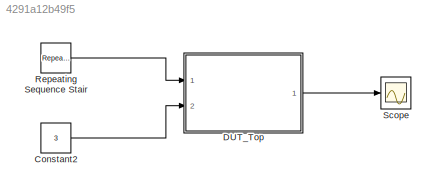
MODEL slx_4291a12b49f5
KIND model
CONFIG AbsTol = auto
CONFIG FixedStep = auto
CONFIG MaxStep = auto
CONFIG MinStep = auto
CONFIG RelTol = 1e-3
CONFIG SampleTimeConstraint = Unconstrained
CONFIG Solver = FixedStepDiscrete
CONFIG SolverMode = SingleTasking
CONFIG SolverName = FixedStepDiscrete
CONFIG StartTime = 0.0
CONFIG StopTime = 1
BLOCK [Constant] Constant2
  OutDataTypeStr = int8
  SampleTime = 0.01
  Value = 3
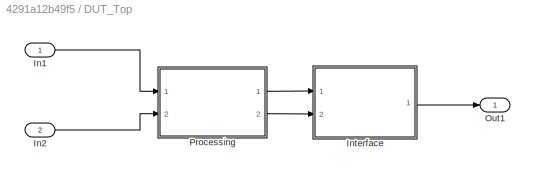
BLOCK [SubSystem] DUT_Top
  Ports = [2, 1]
  RequestExecContextInheritance = off
  Variant = off
BLOCK [Inport] DUT_Top/In1
  IconDisplay = Port number
BLOCK [Inport] DUT_Top/In2
  IconDisplay = Port number
  Port = 2
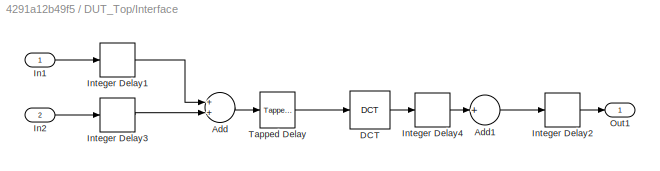
BLOCK [SubSystem] DUT_Top/Interface
  Ports = [2, 1]
  RequestExecContextInheritance = off
  Variant = off
BLOCK [Sum] DUT_Top/Interface/Add
  InputSameDT = off
  OutDataTypeStr = Inherit: Inherit via internal rule
  Ports = [2, 1]
  SaturateOnIntegerOverflow = off
BLOCK [Sum] DUT_Top/Interface/Add1
  InputSameDT = off
  Inputs = +
  OutDataTypeStr = Inherit: Inherit via internal rule
  Ports = [1, 1]
  SaturateOnIntegerOverflow = off
BLOCK [Reference] DUT_Top/Interface/DCT  REF=dspxfrm3/DCT
  Ports = [1, 1]
  SourceBlock = dspxfrm3/DCT
  SourceType = DCT
BLOCK [Inport] DUT_Top/Interface/In1
  IconDisplay = Port number
BLOCK [Inport] DUT_Top/Interface/In2
  IconDisplay = Port number
  Port = 2
BLOCK [Delay] DUT_Top/Interface/Integer Delay1
  DelayLength = 1
  InputPortMap = u0
  InputProcessing = Inherited
  Ports = [1, 1]
  UserDataPersistent = on
BLOCK [Delay] DUT_Top/Interface/Integer Delay2
  DelayLength = 1
  InputPortMap = u0
  InputProcessing = Inherited
  Ports = [1, 1]
  UserDataPersistent = on
BLOCK [Delay] DUT_Top/Interface/Integer Delay3
  DelayLength = 1
  InputPortMap = u0
  InputProcessing = Inherited
  Ports = [1, 1]
  UserDataPersistent = on
BLOCK [Delay] DUT_Top/Interface/Integer Delay4
  DelayLength = 1
  InputPortMap = u0
  InputProcessing = Inherited
  Ports = [1, 1]
  UserDataPersistent = on
BLOCK [Outport] DUT_Top/Interface/Out1
  IconDisplay = Port number
BLOCK [Reference] DUT_Top/Interface/Tapped Delay  REF=simulink/Discrete/Tapped Delay
  Ports = [1, 1]
  SourceBlock = simulink/Discrete/Tapped Delay
  SourceType = Tapped Delay Line
BLOCK [Outport] DUT_Top/Out1
  IconDisplay = Port number
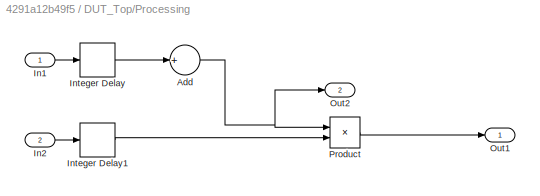
BLOCK [SubSystem] DUT_Top/Processing
  Ports = [2, 2]
  RequestExecContextInheritance = off
  Variant = off
BLOCK [Sum] DUT_Top/Processing/Add
  InputSameDT = off
  Inputs = +
  OutDataTypeStr = Inherit: Inherit via internal rule
  Ports = [1, 1]
  SaturateOnIntegerOverflow = off
BLOCK [Inport] DUT_Top/Processing/In1
  IconDisplay = Port number
BLOCK [Inport] DUT_Top/Processing/In2
  IconDisplay = Port number
  Port = 2
BLOCK [Delay] DUT_Top/Processing/Integer Delay
  DelayLength = 1
  InputPortMap = u0
  InputProcessing = Inherited
  Ports = [1, 1]
  UserDataPersistent = on
BLOCK [Delay] DUT_Top/Processing/Integer Delay1
  DelayLength = 1
  InputPortMap = u0
  InputProcessing = Inherited
  Ports = [1, 1]
  UserDataPersistent = on
BLOCK [Outport] DUT_Top/Processing/Out1
  IconDisplay = Port number
BLOCK [Outport] DUT_Top/Processing/Out2
  IconDisplay = Port number
  Port = 2
BLOCK [Product] DUT_Top/Processing/Product
  InputSameDT = off
  OutDataTypeStr = Inherit: Inherit via internal rule
  Ports = [2, 1]
  SaturateOnIntegerOverflow = off
BLOCK [Reference] Repeating Sequence Stair  REF=simulink/Sources/Repeating
Sequence
Stair
  Ports = [0, 1]
  SourceBlock = simulink/Sources/Repeating\nSequence\nStair
  SourceType = Repeating Sequence Stair
BLOCK [Scope] Scope
  Ports = [1]
  ScopeSpecificationString = Simulink.scopes.TimeScopeBlockCfg('CurrentConfiguration', extmgr.ConfigurationSet(extmgr.Configuration('Core','General UI',true),extmgr.Configuration('Core','Source UI',true),extmgr.Configuration('Sources','WiredSimulink',true,'DataLoggingSaveFormat','StructureWithTime','DataLoggingLimitDataPoints',true,'DataLoggingDecimation','1','DataLoggingDecimateData',true),extmgr.Configuration('Visuals','Tim...<+1687ch>
LINE Constant2:1 -> DUT_Top:2
LINE DUT_Top/In1:1 -> DUT_Top/Processing:1
LINE DUT_Top/In2:1 -> DUT_Top/Processing:2
LINE DUT_Top/Interface/Add1:1 -> DUT_Top/Interface/Integer Delay2:1
LINE DUT_Top/Interface/Add:1 -> DUT_Top/Interface/Tapped Delay:1
LINE DUT_Top/Interface/DCT:1 -> DUT_Top/Interface/Integer Delay4:1
LINE DUT_Top/Interface/In1:1 -> DUT_Top/Interface/Integer Delay1:1
LINE DUT_Top/Interface/In2:1 -> DUT_Top/Interface/Integer Delay3:1
LINE DUT_Top/Interface/Integer Delay1:1 -> DUT_Top/Interface/Add:1
LINE DUT_Top/Interface/Integer Delay2:1 -> DUT_Top/Interface/Out1:1
LINE DUT_Top/Interface/Integer Delay3:1 -> DUT_Top/Interface/Add:2
LINE DUT_Top/Interface/Integer Delay4:1 -> DUT_Top/Interface/Add1:1
LINE DUT_Top/Interface/Tapped Delay:1 -> DUT_Top/Interface/DCT:1
LINE DUT_Top/Interface:1 -> DUT_Top/Out1:1
NET DUT_Top/Processing/Add:1 -> DUT_Top/Processing/Out2:1, DUT_Top/Processing/Product:1
LINE DUT_Top/Processing/In1:1 -> DUT_Top/Processing/Integer Delay:1
LINE DUT_Top/Processing/In2:1 -> DUT_Top/Processing/Integer Delay1:1
LINE DUT_Top/Processing/Integer Delay1:1 -> DUT_Top/Processing/Product:2
LINE DUT_Top/Processing/Integer Delay:1 -> DUT_Top/Processing/Add:1
LINE DUT_Top/Processing/Product:1 -> DUT_Top/Processing/Out1:1
LINE DUT_Top/Processing:1 -> DUT_Top/Interface:1
LINE DUT_Top/Processing:2 -> DUT_Top/Interface:2
LINE DUT_Top:1 -> Scope:1
LINE Repeating Sequence Stair:1 -> DUT_Top:1
note: NET lines group one-source signal fan-out (src -> all destinations, sorted); 1:1 wires keep LINE
